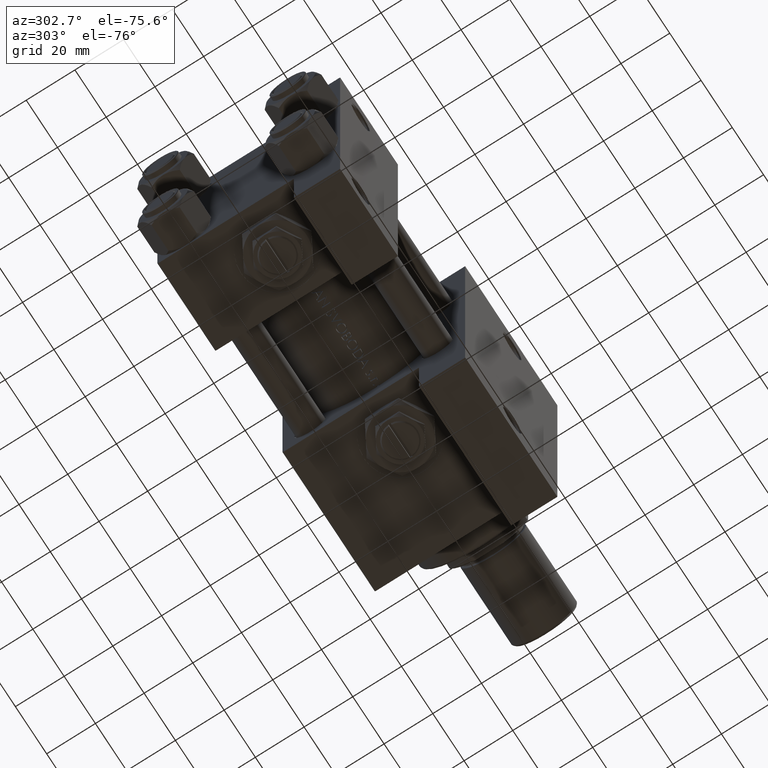
[diagram: clean part render]
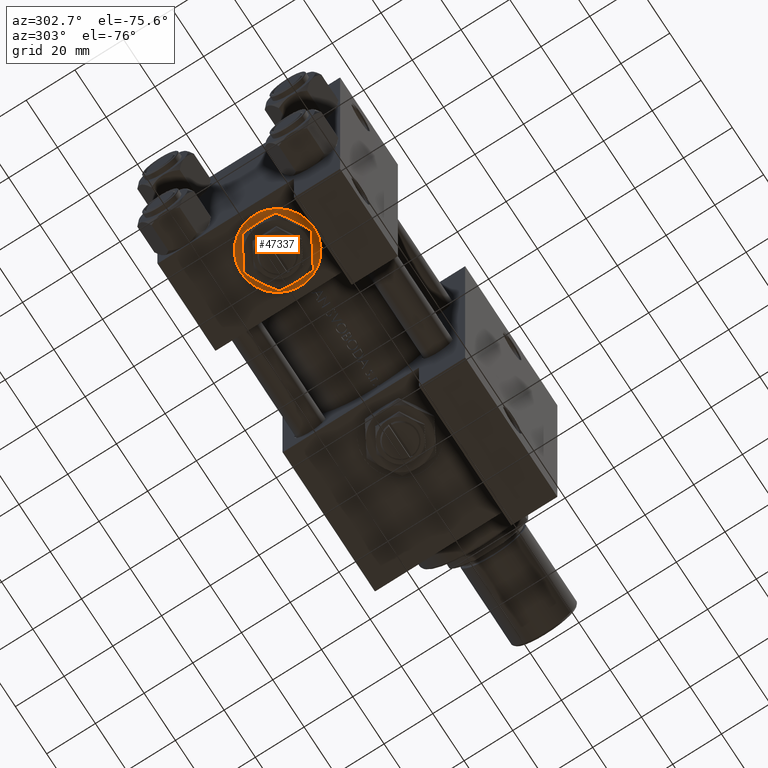
[diagram: same view with one face highlighted and labeled with its STEP entity id]
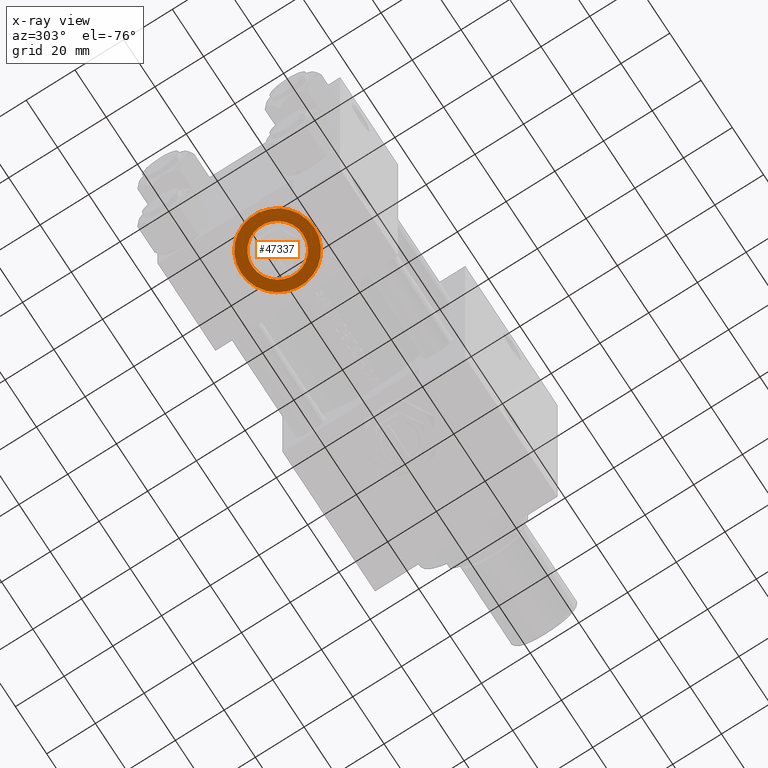
[diagram: x-ray of the same camera — body ghosted, the highlighted face saturated]
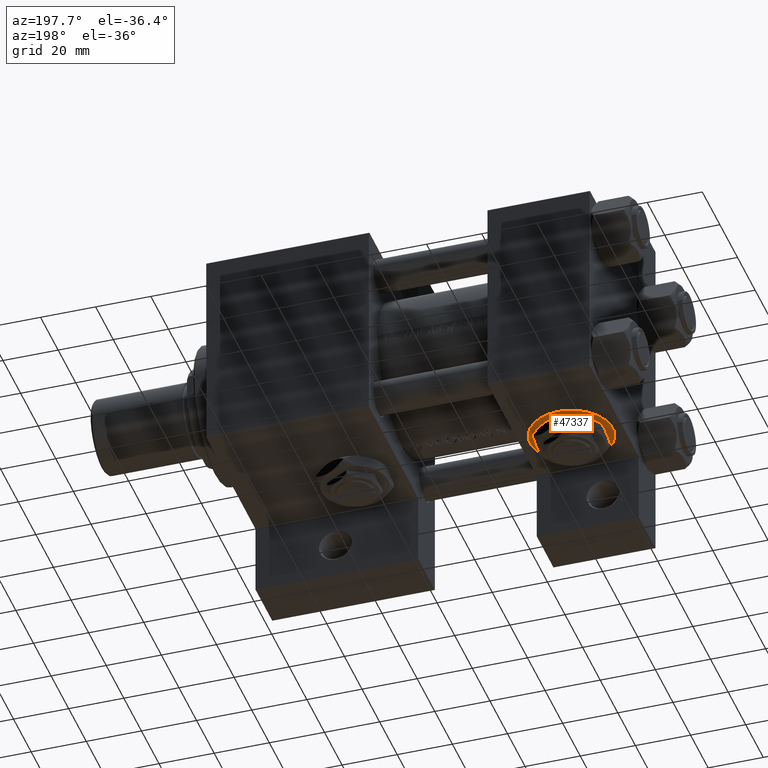
[diagram: same view with one face highlighted and labeled with its STEP entity id]
A machine part, auxiliary view. The second image highlights one B-rep face of the part: STEP entity #47337.
The next image is the same camera in x-ray: the body ghosted, the highlighted face saturated — about 0% of this face is hidden behind the body in this view.
A second angle (auxiliary view) of the same face is appended — the face is thin or edge-on in the first view.
In plain terms, the highlighted planar face has unit normal (0, 0, -1).
Its self-contained STEP definition (entity closure, byte-faithful):
#443 = ORIENTED_EDGE ( 'NONE', *, *, #12882, .F. ) ;
#1098 = EDGE_CURVE ( 'NONE', #18043, #25443, #16749, .T. ) ;
#4920 = CARTESIAN_POINT ( 'NONE',  ( 18.50000000000000000, 37.29999999999999005, -10.48000000000000043 ) ) ;
#7520 = CIRCLE ( 'NONE', #44813, 10.48000000000000043 ) ;
#7704 = DIRECTION ( 'NONE',  ( 0.000000000000000000, 1.000000000000000000, 0.000000000000000000 ) ) ;
#8250 = CARTESIAN_POINT ( 'NONE',  ( 18.50000000000000000, 37.29999999999999005, 0.000000000000000000 ) ) ;
#10947 = VERTEX_POINT ( 'NONE', #40318 ) ;
#11192 = DIRECTION ( 'NONE',  ( 0.000000000000000000, 0.000000000000000000, 1.000000000000000000 ) ) ;
#12867 = FACE_OUTER_BOUND ( 'NONE', #14375, .T. ) ;
#12882 = EDGE_CURVE ( 'NONE', #10947, #48066, #7520, .T. ) ;
#13605 = CARTESIAN_POINT ( 'NONE',  ( 18.50000000000000000, 37.29999999999999005, 0.000000000000000000 ) ) ;
#13887 = EDGE_CURVE ( 'NONE', #48066, #10947, #24188, .T. ) ;
#14375 = EDGE_LOOP ( 'NONE', ( #27195, #39459 ) ) ;
#16358 = PLANE ( 'NONE',  #37535 ) ;
#16749 = CIRCLE ( 'NONE', #24699, 15.00000000000000178 ) ;
#17057 = DIRECTION ( 'NONE',  ( 0.000000000000000000, 1.000000000000000000, 0.000000000000000000 ) ) ;
#18043 = VERTEX_POINT ( 'NONE', #20694 ) ;
#19197 = EDGE_LOOP ( 'NONE', ( #443, #39216 ) ) ;
#19794 = CARTESIAN_POINT ( 'NONE',  ( 18.50000000000000000, 37.29999999999999005, 0.000000000000000000 ) ) ;
#20694 = CARTESIAN_POINT ( 'NONE',  ( 18.50000000000000355, 37.29999999999999005, -15.00000000000000178 ) ) ;
#22735 = CARTESIAN_POINT ( 'NONE',  ( 18.50000000000000000, 37.29999999999999005, 15.00000000000000178 ) ) ;
#23108 = CIRCLE ( 'NONE', #34980, 15.00000000000000178 ) ;
#24188 = CIRCLE ( 'NONE', #46426, 10.48000000000000043 ) ;
#24699 = AXIS2_PLACEMENT_3D ( 'NONE', #36168, #17057, #47616 ) ;
#25443 = VERTEX_POINT ( 'NONE', #22735 ) ;
#26749 = DIRECTION ( 'NONE',  ( 0.000000000000000000, 1.000000000000000000, 0.000000000000000000 ) ) ;
#27195 = ORIENTED_EDGE ( 'NONE', *, *, #42996, .T. ) ;
#34336 = DIRECTION ( 'NONE',  ( 0.000000000000000000, 0.000000000000000000, 1.000000000000000000 ) ) ;
#34980 = AXIS2_PLACEMENT_3D ( 'NONE', #19794, #26749, #38670 ) ;
#35456 = DIRECTION ( 'NONE',  ( 0.000000000000000000, -0.000000000000000000, 1.000000000000000000 ) ) ;
#36168 = CARTESIAN_POINT ( 'NONE',  ( 18.50000000000000000, 37.29999999999999005, 0.000000000000000000 ) ) ;
#37535 = AXIS2_PLACEMENT_3D ( 'NONE', #13605, #43170, #35456 ) ;
#38670 = DIRECTION ( 'NONE',  ( 0.000000000000000000, 0.000000000000000000, 1.000000000000000000 ) ) ;
#39216 = ORIENTED_EDGE ( 'NONE', *, *, #13887, .F. ) ;
#39459 = ORIENTED_EDGE ( 'NONE', *, *, #1098, .T. ) ;
#40318 = CARTESIAN_POINT ( 'NONE',  ( 18.50000000000000000, 37.29999999999999005, 10.48000000000000043 ) ) ;
#41732 = CARTESIAN_POINT ( 'NONE',  ( 18.50000000000000000, 37.29999999999999005, 0.000000000000000000 ) ) ;
#42996 = EDGE_CURVE ( 'NONE', #25443, #18043, #23108, .T. ) ;
#43170 = DIRECTION ( 'NONE',  ( 0.000000000000000000, 1.000000000000000000, 0.000000000000000000 ) ) ;
#44813 = AXIS2_PLACEMENT_3D ( 'NONE', #8250, #45286, #34336 ) ;
#45286 = DIRECTION ( 'NONE',  ( 0.000000000000000000, 1.000000000000000000, 0.000000000000000000 ) ) ;
#46426 = AXIS2_PLACEMENT_3D ( 'NONE', #41732, #7704, #11192 ) ;
#46662 = FACE_BOUND ( 'NONE', #19197, .T. ) ;
#47337 = ADVANCED_FACE ( 'NONE', ( #46662, #12867 ), #16358, .T. ) ;
#47616 = DIRECTION ( 'NONE',  ( 0.000000000000000000, 0.000000000000000000, 1.000000000000000000 ) ) ;
#48066 = VERTEX_POINT ( 'NONE', #4920 ) ;